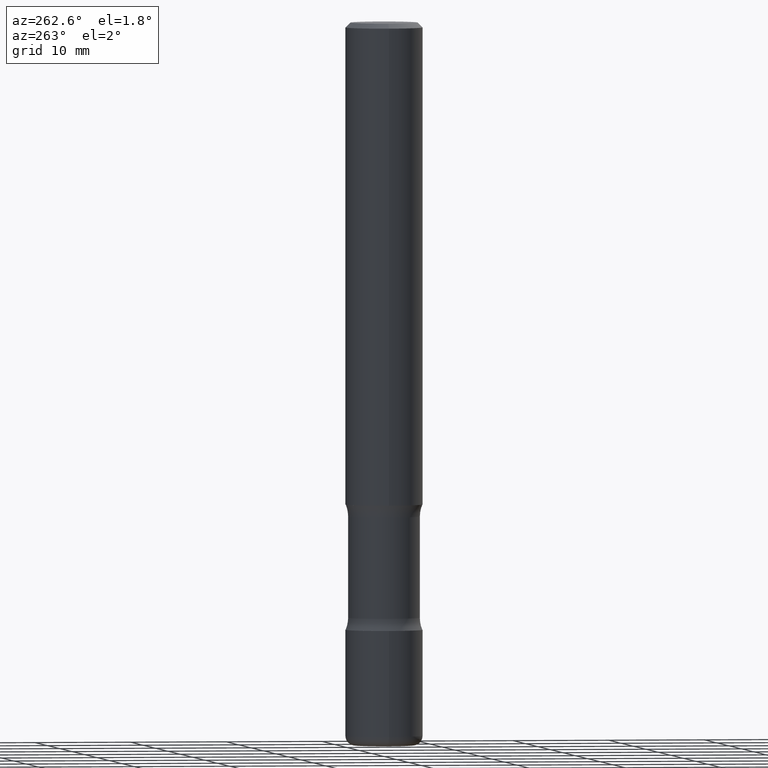
[diagram: clean part render]
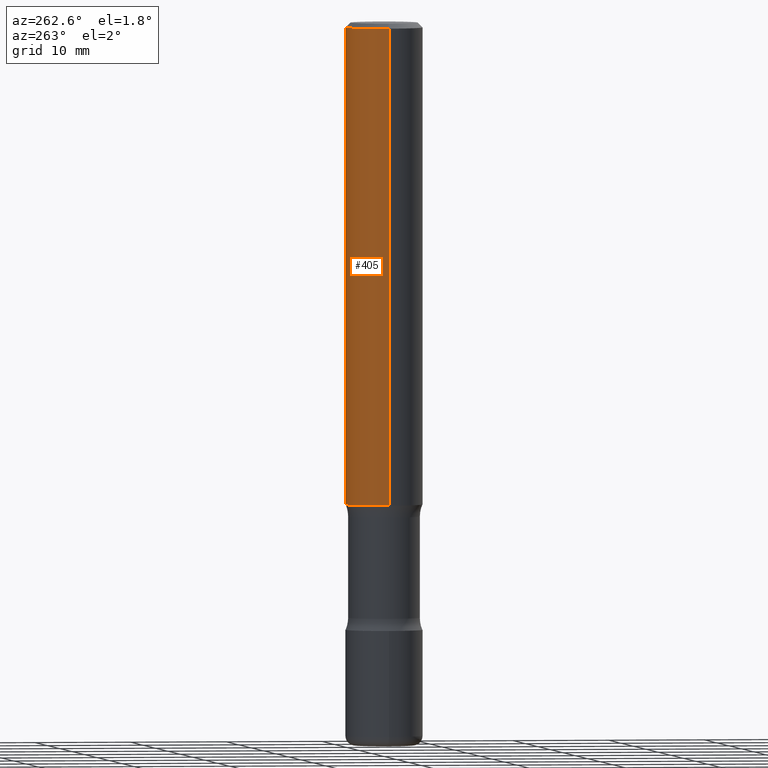
[diagram: same view with one face highlighted and labeled with its STEP entity id]
A machine part, auxiliary view. The second image highlights one B-rep face of the part: STEP entity #405.
In plain terms, the highlighted cylindrical surface (partial cylindrical patch) has radius 4.0005 mm, axis along (-0, 0, 1).
Its self-contained STEP definition (entity closure, byte-faithful):
#2 = VERTEX_POINT ( 'NONE', #127 ) ;
#4 = AXIS2_PLACEMENT_3D ( 'NONE', #357, #360, #184 ) ;
#8 = VERTEX_POINT ( 'NONE', #423 ) ;
#53 = VECTOR ( 'NONE', #303, 39.37007874015748143 ) ;
#66 = VERTEX_POINT ( 'NONE', #77 ) ;
#67 = DIRECTION ( 'NONE',  ( -2.445468806185136597E-29, 3.491481338843145583E-15, 1.000000000000000000 ) ) ;
#68 = EDGE_LOOP ( 'NONE', ( #71, #201, #460, #435 ) ) ;
#71 = ORIENTED_EDGE ( 'NONE', *, *, #249, .T. ) ;
#72 = VECTOR ( 'NONE', #536, 39.37007874015748143 ) ;
#77 = CARTESIAN_POINT ( 'NONE',  ( -0.1575000000000001676, -2.352300512322635166E-15, -1.968499999999999694 ) ) ;
#106 = AXIS2_PLACEMENT_3D ( 'NONE', #327, #148, #152 ) ;
#127 = CARTESIAN_POINT ( 'NONE',  ( 0.1575000000000001676, -7.972797637248319976E-15, -1.968499999999999694 ) ) ;
#148 = DIRECTION ( 'NONE',  ( -2.445468806185136597E-29, 3.491481338843145583E-15, 1.000000000000000000 ) ) ;
#150 = EDGE_CURVE ( 'NONE', #2, #8, #463, .T. ) ;
#152 = DIRECTION ( 'NONE',  ( 1.000000000000000000, -6.982962677686266711E-15, 0.000000000000000000 ) ) ;
#184 = DIRECTION ( 'NONE',  ( 1.000000000000000000, -6.982962677686267499E-15, 4.876176775795935232E-29 ) ) ;
#190 = EDGE_CURVE ( 'NONE', #8, #546, #225, .T. ) ;
#197 = CARTESIAN_POINT ( 'NONE',  ( 4.813905344975440714E-29, -6.872981015512730918E-15, -1.968499999999999694 ) ) ;
#201 = ORIENTED_EDGE ( 'NONE', *, *, #282, .T. ) ;
#224 = CYLINDRICAL_SURFACE ( 'NONE', #4, 0.1575000000000000289 ) ;
#225 = CIRCLE ( 'NONE', #106, 0.1574999999999999178 ) ;
#238 = DIRECTION ( 'NONE',  ( 1.000000000000000000, -6.982962677686267499E-15, 0.000000000000000000 ) ) ;
#240 = CARTESIAN_POINT ( 'NONE',  ( -0.1574999999999999178, 1.029986994958723590E-15, -0.02000000000000000042 ) ) ;
#249 = EDGE_CURVE ( 'NONE', #2, #66, #461, .T. ) ;
#282 = EDGE_CURVE ( 'NONE', #66, #546, #348, .T. ) ;
#290 = CARTESIAN_POINT ( 'NONE',  ( 0.1575000000000000289, -1.099816621735587283E-15, 7.679978421878599434E-30 ) ) ;
#303 = DIRECTION ( 'NONE',  ( -2.445468806185136877E-29, 3.491481338843145188E-15, 1.000000000000000000 ) ) ;
#327 = CARTESIAN_POINT ( 'NONE',  ( 4.890937612370273159E-31, -6.982962677686291609E-17, -0.02000000000000000042 ) ) ;
#348 = LINE ( 'NONE', #508, #53 ) ;
#354 = FACE_OUTER_BOUND ( 'NONE', #68, .T. ) ;
#357 = CARTESIAN_POINT ( 'NONE',  ( 0.000000000000000000, 0.000000000000000000, 0.000000000000000000 ) ) ;
#360 = DIRECTION ( 'NONE',  ( -2.445468806185136597E-29, 3.491481338843145583E-15, 1.000000000000000000 ) ) ;
#405 = ADVANCED_FACE ( 'NONE', ( #354 ), #224, .T. ) ;
#423 = CARTESIAN_POINT ( 'NONE',  ( 0.1574999999999999178, -1.150358061425878486E-15, -0.02000000000000000042 ) ) ;
#435 = ORIENTED_EDGE ( 'NONE', *, *, #150, .F. ) ;
#460 = ORIENTED_EDGE ( 'NONE', *, *, #190, .F. ) ;
#461 = CIRCLE ( 'NONE', #544, 0.1575000000000001676 ) ;
#463 = LINE ( 'NONE', #290, #72 ) ;
#508 = CARTESIAN_POINT ( 'NONE',  ( -0.1575000000000000289, 1.119104808822157998E-15, -7.747322767151478386E-30 ) ) ;
#536 = DIRECTION ( 'NONE',  ( -2.445468806185136877E-29, 3.491481338843145188E-15, 1.000000000000000000 ) ) ;
#544 = AXIS2_PLACEMENT_3D ( 'NONE', #197, #67, #238 ) ;
#546 = VERTEX_POINT ( 'NONE', #240 ) ;